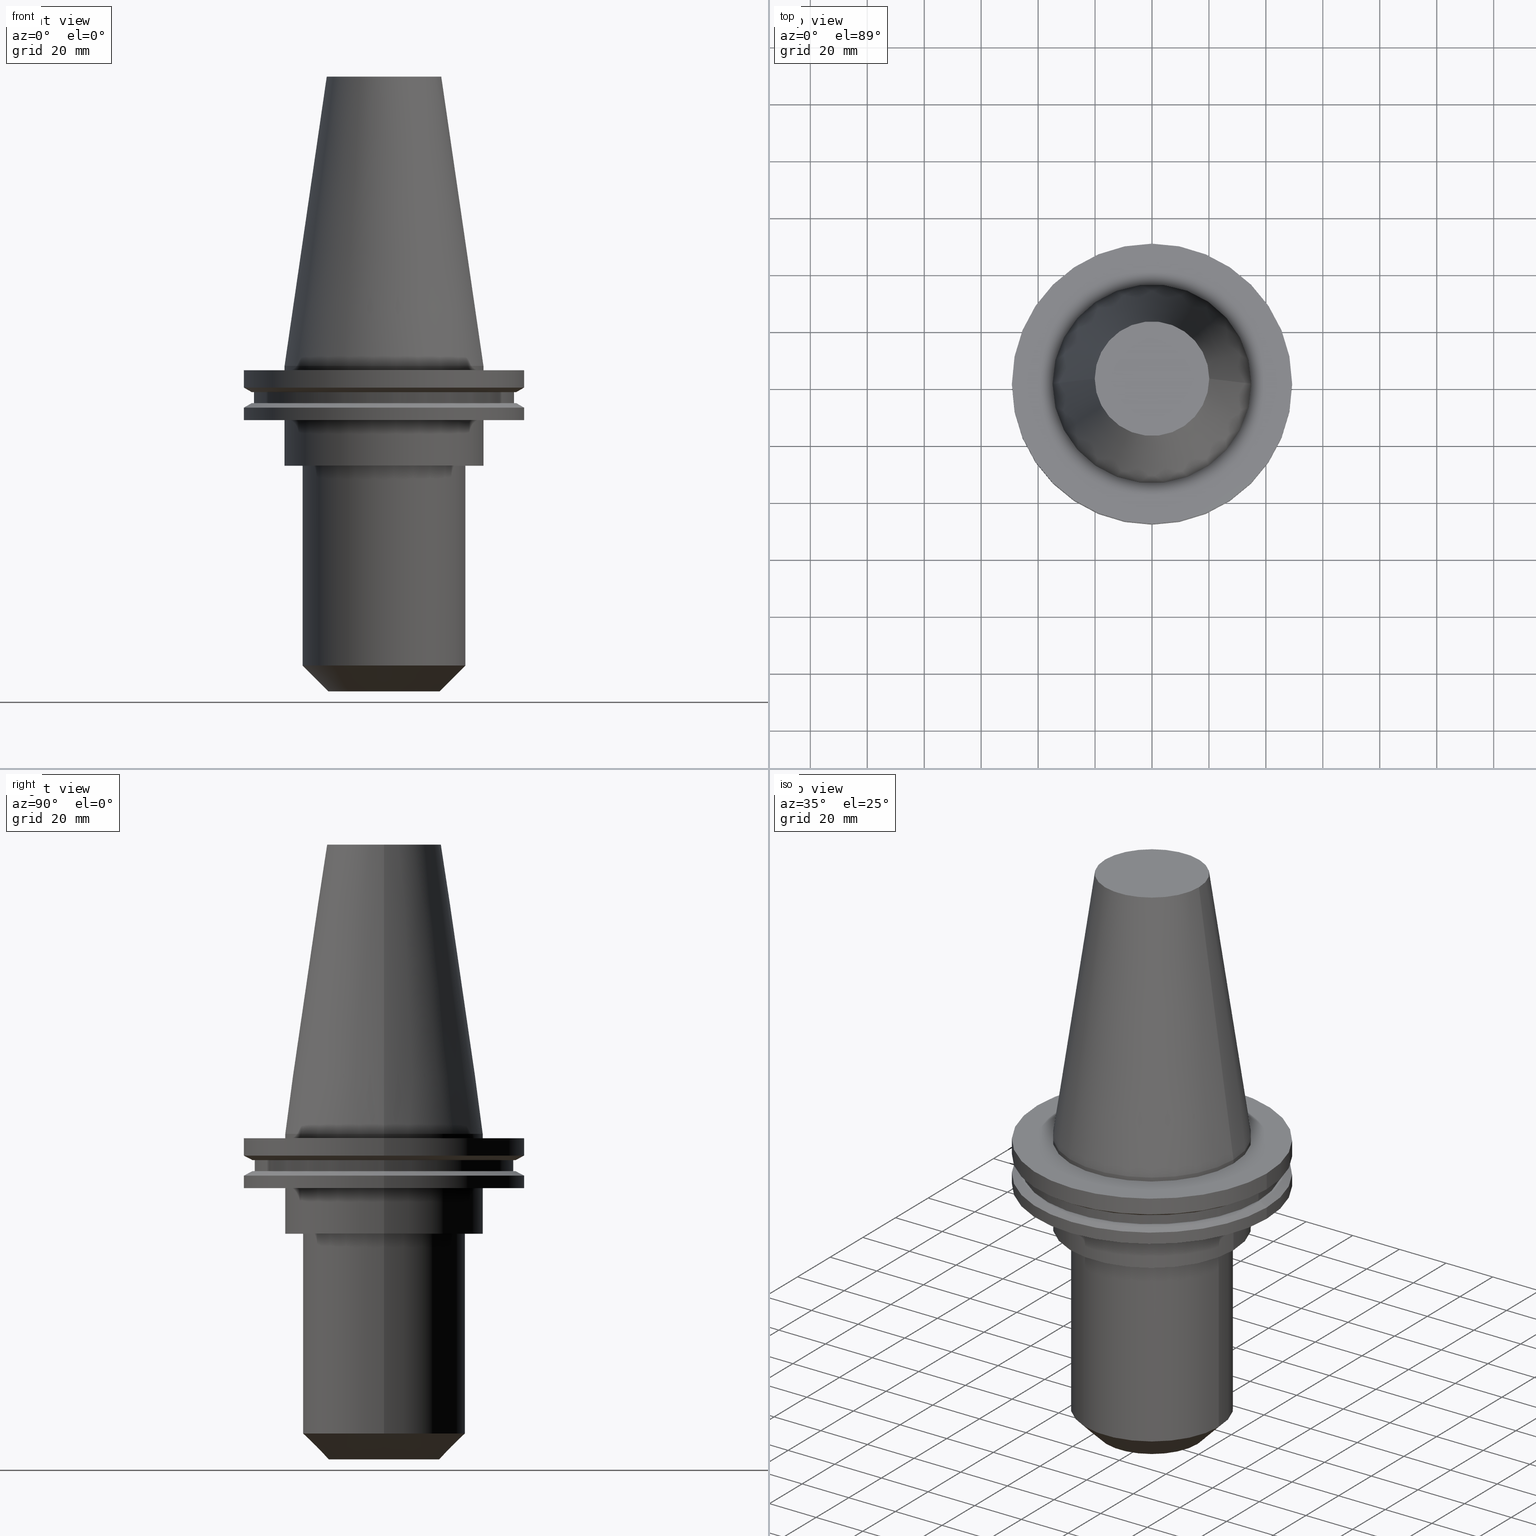
[diagram: canonical four-view strip — front | top / right | iso, engineering-drawing reading convention]
A machine part, canonical four-view strip (front | top / right | iso — engineering-drawing reading convention). The complete STEP part file that produces these views, byte-faithful:
ISO-10303-21;
HEADER;
FILE_DESCRIPTION (( 'STEP AP203' ),
    '1' );
FILE_NAME ('BCV50-EM1_000-4_5.stp',
    '2022-03-03T16:45:28',
    ( '' ),
    ( '' ),
    'SwSTEP 2.0',
    'SolidWorks 2021',
    '' );
FILE_SCHEMA (( 'CONFIG_CONTROL_DESIGN' ));
ENDSEC;

DATA;
#1 = DIRECTION ( 'NONE',  ( 1.000000000000000000, 0.000000000000000000, 0.000000000000000000 ) ) ;
#2 = CC_DESIGN_DATE_AND_TIME_ASSIGNMENT ( #43, #321, ( #687 ) ) ;
#3 = CARTESIAN_POINT ( 'NONE',  ( -49.21499999999998920, 0.000000000000000000, -14.65761014474876944 ) ) ;
#4 = CIRCLE ( 'NONE', #678, 49.21499999999999631 ) ;
#5 = CARTESIAN_POINT ( 'NONE',  ( 0.000000000000000000, 0.000000000000000000, -9.204999999999991189 ) ) ;
#6 = ORIENTED_EDGE ( 'NONE', *, *, #778, .F. ) ;
#7 = DIRECTION ( 'NONE',  ( 1.000000000000000000, 0.000000000000000000, 0.000000000000000000 ) ) ;
#8 = CIRCLE ( 'NONE', #429, 34.92499999999999005 ) ;
#9 = EDGE_CURVE ( 'NONE', #584, #83, #530, .T. ) ;
#10 = AXIS2_PLACEMENT_3D ( 'NONE', #202, #281, #85 ) ;
#11 = DIRECTION ( 'NONE',  ( -0.000000000000000000, -0.000000000000000000, 1.000000000000000000 ) ) ;
#12 = CC_DESIGN_PERSON_AND_ORGANIZATION_ASSIGNMENT ( #723, #245, ( #188 ) ) ;
#13 = PLANE ( 'NONE',  #763 ) ;
#14 = ORIENTED_EDGE ( 'NONE', *, *, #493, .F. ) ;
#15 = CARTESIAN_POINT ( 'NONE',  ( 0.000000000000000000, 0.000000000000000000, -9.204999999999991189 ) ) ;
#16 = CARTESIAN_POINT ( 'NONE',  ( -46.43919780457007818, 5.687161494633754392E-15, -9.204999999999991189 ) ) ;
#17 = ORIENTED_EDGE ( 'NONE', *, *, #525, .T. ) ;
#18 = DIRECTION ( 'NONE',  ( -0.000000000000000000, -0.000000000000000000, 1.000000000000000000 ) ) ;
#19 = CC_DESIGN_APPROVAL ( #711, ( #188 ) ) ;
#20 =( LENGTH_UNIT ( ) NAMED_UNIT ( * ) SI_UNIT ( .MILLI., .METRE. ) );
#21 = AXIS2_PLACEMENT_3D ( 'NONE', #310, #575, #581 ) ;
#22 = DIRECTION ( 'NONE',  ( 1.000000000000000000, 0.000000000000000000, 0.000000000000000000 ) ) ;
#23 = CYLINDRICAL_SURFACE ( 'NONE', #74, 34.92499999999999716 ) ;
#24 = EDGE_CURVE ( 'NONE', #488, #39, #159, .T. ) ;
#25 = LINE ( 'NONE', #374, #527 ) ;
#26 = VERTEX_POINT ( 'NONE', #338 ) ;
#27 = DIRECTION ( 'NONE',  ( 1.000000000000000000, 0.000000000000000000, 0.000000000000000000 ) ) ;
#28 = EDGE_CURVE ( 'NONE', #362, #294, #198, .T. ) ;
#29 = ORIENTED_EDGE ( 'NONE', *, *, #441, .T. ) ;
#30 = ORIENTED_EDGE ( 'NONE', *, *, #263, .T. ) ;
#31 = CARTESIAN_POINT ( 'NONE',  ( -45.64500000000000313, 5.589900314708094957E-15, -9.204999999999991189 ) ) ;
#32 = VECTOR ( 'NONE', #644, 1000.000000000000000 ) ;
#33 = APPLICATION_PROTOCOL_DEFINITION ( 'international standard', 'config_control_design', 1994, #190 ) ;
#34 = EDGE_LOOP ( 'NONE', ( #298, #235, #150, #29 ) ) ;
#35 = CARTESIAN_POINT ( 'NONE',  ( 0.000000000000000000, 0.000000000000000000, -14.65761014474876944 ) ) ;
#36 = VECTOR ( 'NONE', #489, 1000.000000000000000 ) ;
#37 = ORIENTED_EDGE ( 'NONE', *, *, #490, .F. ) ;
#38 = CARTESIAN_POINT ( 'NONE',  ( -46.43919780457007818, 0.000000000000000000, -13.05499999999999794 ) ) ;
#39 = VERTEX_POINT ( 'NONE', #259 ) ;
#40 = EDGE_LOOP ( 'NONE', ( #800, #836, #209, #240 ) ) ;
#41 = FACE_BOUND ( 'NONE', #454, .T. ) ;
#42 = ORIENTED_EDGE ( 'NONE', *, *, #512, .F. ) ;
#43 = DATE_AND_TIME ( #716, #401 ) ;
#44 = ORIENTED_EDGE ( 'NONE', *, *, #213, .F. ) ;
#45 = CARTESIAN_POINT ( 'NONE',  ( 0.000000000000000000, 0.000000000000000000, -114.2999999999999972 ) ) ;
#46 = PRODUCT_DEFINITION_SHAPE ( 'NONE', 'NONE',  #687 ) ;
#47 = AXIS2_PLACEMENT_3D ( 'NONE', #324, #720, #726 ) ;
#48 = DIRECTION ( 'NONE',  ( 1.000000000000000000, 0.000000000000000000, 0.000000000000000000 ) ) ;
#49 = ORIENTED_EDGE ( 'NONE', *, *, #254, .T. ) ;
#50 = DIRECTION ( 'NONE',  ( 0.000000000000000000, -0.000000000000000000, 1.000000000000000000 ) ) ;
#51 = APPLICATION_CONTEXT ( 'configuration controlled 3d designs of mechanical parts and assemblies' ) ;
#52 = CARTESIAN_POINT ( 'NONE',  ( 0.000000000000000000, 0.000000000000000000, 101.5999999999999943 ) ) ;
#53 = APPROVAL_STATUS ( 'not_yet_approved' ) ;
#54 = CARTESIAN_POINT ( 'NONE',  ( 0.000000000000000000, 49.21499999999998920, -19.04999999999999716 ) ) ;
#55 = CARTESIAN_POINT ( 'NONE',  ( -49.21499999999999631, 6.027099222003697826E-15, -1.499999999999987566 ) ) ;
#56 = AXIS2_PLACEMENT_3D ( 'NONE', #152, #306, #163 ) ;
#57 = DATE_AND_TIME ( #654, #510 ) ;
#58 = DIRECTION ( 'NONE',  ( -0.000000000000000000, -0.000000000000000000, 1.000000000000000000 ) ) ;
#59 = DIRECTION ( 'NONE',  ( 0.000000000000000000, 0.000000000000000000, -1.000000000000000000 ) ) ;
#60 = APPROVAL ( #578, 'UNSPECIFIED' ) ;
#61 = AXIS2_PLACEMENT_3D ( 'NONE', #231, #696, #27 ) ;
#62 = FACE_BOUND ( 'NONE', #682, .T. ) ;
#63 = FACE_BOUND ( 'NONE', #96, .T. ) ;
#64 = CARTESIAN_POINT ( 'NONE',  ( 0.000000000000000000, 0.000000000000000000, -9.204999999999991189 ) ) ;
#65 = DIRECTION ( 'NONE',  ( -0.000000000000000000, -0.000000000000000000, 1.000000000000000000 ) ) ;
#66 = ORIENTED_EDGE ( 'NONE', *, *, #504, .T. ) ;
#67 = CARTESIAN_POINT ( 'NONE',  ( 0.000000000000000000, 0.000000000000000000, -19.04999999999999716 ) ) ;
#68 = CIRCLE ( 'NONE', #258, 45.64500000000000313 ) ;
#69 = AXIS2_PLACEMENT_3D ( 'NONE', #35, #237, #556 ) ;
#70 = DIRECTION ( 'NONE',  ( -0.000000000000000000, -0.000000000000000000, 1.000000000000000000 ) ) ;
#71 = EDGE_LOOP ( 'NONE', ( #570, #404, #307, #555 ) ) ;
#72 = CARTESIAN_POINT ( 'NONE',  ( 0.000000000000000000, 0.000000000000000000, -9.204999999999991189 ) ) ;
#73 = LINE ( 'NONE', #544, #204 ) ;
#74 = AXIS2_PLACEMENT_3D ( 'NONE', #154, #354, #203 ) ;
#75 = CIRCLE ( 'NONE', #532, 28.59999999999999076 ) ;
#76 = DIRECTION ( 'NONE',  ( 1.000000000000000000, 0.000000000000000000, 0.000000000000000000 ) ) ;
#77 = EDGE_LOOP ( 'NONE', ( #635, #549 ) ) ;
#78 = EDGE_CURVE ( 'NONE', #542, #537, #464, .T. ) ;
#79 = FACE_OUTER_BOUND ( 'NONE', #366, .T. ) ;
#80 = DIRECTION ( 'NONE',  ( 1.000000000000000000, 0.000000000000000000, 0.000000000000000000 ) ) ;
#81 = ADVANCED_FACE ( 'NONE', ( #785 ), #754, .T. ) ;
#82 = DIRECTION ( 'NONE',  ( -0.1443082272672999988, 0.000000000000000000, -0.9895327864921755756 ) ) ;
#83 = VERTEX_POINT ( 'NONE', #267 ) ;
#84 = ADVANCED_FACE ( 'NONE', ( #461 ), #194, .T. ) ;
#85 = DIRECTION ( 'NONE',  ( 1.000000000000000000, 0.000000000000000000, 0.000000000000000000 ) ) ;
#86 = DIRECTION ( 'NONE',  ( -0.000000000000000000, -0.000000000000000000, 1.000000000000000000 ) ) ;
#87 = PERSON_AND_ORGANIZATION ( #796, #693 ) ;
#88 = AXIS2_PLACEMENT_3D ( 'NONE', #773, #131, #445 ) ;
#89 = ORIENTED_EDGE ( 'NONE', *, *, #142, .F. ) ;
#90 = DIRECTION ( 'NONE',  ( -0.000000000000000000, -0.000000000000000000, 1.000000000000000000 ) ) ;
#91 = ADVANCED_FACE ( 'NONE', ( #181 ), #320, .T. ) ;
#92 = COORDINATED_UNIVERSAL_TIME_OFFSET ( 6, 0, .BEHIND. ) ;
#93 = ORIENTED_EDGE ( 'NONE', *, *, #431, .T. ) ;
#94 = CARTESIAN_POINT ( 'NONE',  ( 45.64500000000000313, 0.000000000000000000, 101.5999999999999943 ) ) ;
#95 = DIRECTION ( 'NONE',  ( 0.000000000000000000, 0.000000000000000000, -1.000000000000000000 ) ) ;
#96 = EDGE_LOOP ( 'NONE', ( #183, #223 ) ) ;
#97 = CARTESIAN_POINT ( 'NONE',  ( 0.000000000000000000, 0.000000000000000000, -7.602389855251287187 ) ) ;
#98 = VERTEX_POINT ( 'NONE', #187 ) ;
#99 = CARTESIAN_POINT ( 'NONE',  ( -20.10819343178871321, 0.000000000000000000, 101.5999999999999801 ) ) ;
#100 = DIRECTION ( 'NONE',  ( -0.000000000000000000, -0.000000000000000000, 1.000000000000000000 ) ) ;
#101 = ORIENTED_EDGE ( 'NONE', *, *, #453, .F. ) ;
#102 = DIRECTION ( 'NONE',  ( 0.000000000000000000, 0.000000000000000000, -1.000000000000000000 ) ) ;
#103 = AXIS2_PLACEMENT_3D ( 'NONE', #751, #100, #370 ) ;
#104 = CC_DESIGN_PERSON_AND_ORGANIZATION_ASSIGNMENT ( #106, #826, ( #640 ) ) ;
#105 = DIRECTION ( 'NONE',  ( -0.000000000000000000, -0.000000000000000000, 1.000000000000000000 ) ) ;
#106 = PERSON_AND_ORGANIZATION ( #796, #693 ) ;
#107 = EDGE_LOOP ( 'NONE', ( #443, #551, #659, #469 ) ) ;
#108 = DIRECTION ( 'NONE',  ( -0.000000000000000000, -0.000000000000000000, 1.000000000000000000 ) ) ;
#109 = VECTOR ( 'NONE', #232, 1000.000000000000000 ) ;
#110 = VECTOR ( 'NONE', #436, 1000.000000000000000 ) ;
#111 = EDGE_LOOP ( 'NONE', ( #176, #313, #516, #827 ) ) ;
#112 = ADVANCED_FACE ( 'NONE', ( #590 ), #192, .T. ) ;
#113 = ORIENTED_EDGE ( 'NONE', *, *, #847, .T. ) ;
#114 = FACE_OUTER_BOUND ( 'NONE', #740, .T. ) ;
#115 = ORIENTED_EDGE ( 'NONE', *, *, #521, .T. ) ;
#116 = ADVANCED_FACE ( 'NONE', ( #540 ), #390, .F. ) ;
#117 = COORDINATED_UNIVERSAL_TIME_OFFSET ( 6, 0, .BEHIND. ) ;
#118 = EDGE_LOOP ( 'NONE', ( #226, #546 ) ) ;
#119 = DIRECTION ( 'NONE',  ( 0.000000000000000000, -0.000000000000000000, 1.000000000000000000 ) ) ;
#120 = AXIS2_PLACEMENT_3D ( 'NONE', #473, #70, #797 ) ;
#121 = CIRCLE ( 'NONE', #468, 49.21499999999999631 ) ;
#122 = ADVANCED_FACE ( 'NONE', ( #842 ), #329, .T. ) ;
#123 = DIRECTION ( 'NONE',  ( -0.8660254037844169472, 0.000000000000000000, -0.5000000000000375255 ) ) ;
#124 = ORIENTED_EDGE ( 'NONE', *, *, #490, .T. ) ;
#125 = DIRECTION ( 'NONE',  ( 1.000000000000000000, 0.000000000000000000, 0.000000000000000000 ) ) ;
#126 = AXIS2_PLACEMENT_3D ( 'NONE', #811, #639, #761 ) ;
#127 = DIRECTION ( 'NONE',  ( -1.000000000000000000, 0.000000000000000000, 0.000000000000000000 ) ) ;
#128 = DIRECTION ( 'NONE',  ( 1.000000000000000000, 0.000000000000000000, 0.000000000000000000 ) ) ;
#129 = DIRECTION ( 'NONE',  ( -0.000000000000000000, -0.000000000000000000, 1.000000000000000000 ) ) ;
#130 = COORDINATED_UNIVERSAL_TIME_OFFSET ( 6, 0, .BEHIND. ) ;
#131 = DIRECTION ( 'NONE',  ( 0.000000000000000000, 0.000000000000000000, -1.000000000000000000 ) ) ;
#132 = APPROVAL ( #759, 'UNSPECIFIED' ) ;
#133 = CARTESIAN_POINT ( 'NONE',  ( 0.000000000000000000, 0.000000000000000000, 101.5999999999999943 ) ) ;
#134 = CARTESIAN_POINT ( 'NONE',  ( 34.92499999999999716, 0.000000000000000000, -35.04999999999999716 ) ) ;
#135 = CARTESIAN_POINT ( 'NONE',  ( 0.000000000000000000, 0.000000000000000000, 101.5999999999999943 ) ) ;
#136 = CARTESIAN_POINT ( 'NONE',  ( 0.000000000000000000, 0.000000000000000000, -13.05499999999999794 ) ) ;
#137 = ORIENTED_EDGE ( 'NONE', *, *, #504, .F. ) ;
#138 = DIRECTION ( 'NONE',  ( 1.000000000000000000, 0.000000000000000000, 0.000000000000000000 ) ) ;
#139 = DIRECTION ( 'NONE',  ( 1.000000000000000000, 0.000000000000000000, 0.000000000000000000 ) ) ;
#140 = DIRECTION ( 'NONE',  ( -0.000000000000000000, -0.000000000000000000, 1.000000000000000000 ) ) ;
#141 = DIRECTION ( 'NONE',  ( -1.000000000000000000, 0.000000000000000000, -0.000000000000000000 ) ) ;
#142 = EDGE_CURVE ( 'NONE', #229, #425, #777, .T. ) ;
#143 = CARTESIAN_POINT ( 'NONE',  ( 0.000000000000000000, 0.000000000000000000, 101.5999999999999943 ) ) ;
#144 = ORIENTED_EDGE ( 'NONE', *, *, #437, .T. ) ;
#145 = CC_DESIGN_APPROVAL ( #132, ( #687 ) ) ;
#146 = DIRECTION ( 'NONE',  ( 0.000000000000000000, 0.000000000000000000, -1.000000000000000000 ) ) ;
#147 = DIRECTION ( 'NONE',  ( 1.000000000000000000, 0.000000000000000000, 0.000000000000000000 ) ) ;
#148 = VECTOR ( 'NONE', #816, 1000.000000000000000 ) ;
#149 = LINE ( 'NONE', #415, #729 ) ;
#150 = ORIENTED_EDGE ( 'NONE', *, *, #28, .T. ) ;
#151 = DIRECTION ( 'NONE',  ( -0.000000000000000000, -0.000000000000000000, 1.000000000000000000 ) ) ;
#152 = CARTESIAN_POINT ( 'NONE',  ( 0.000000000000000000, 0.000000000000000000, 0.000000000000000000 ) ) ;
#153 = VERTEX_POINT ( 'NONE', #55 ) ;
#154 = CARTESIAN_POINT ( 'NONE',  ( 0.000000000000000000, 0.000000000000000000, 101.5999999999999943 ) ) ;
#155 = DIRECTION ( 'NONE',  ( -0.000000000000000000, -0.000000000000000000, 1.000000000000000000 ) ) ;
#156 = AXIS2_PLACEMENT_3D ( 'NONE', #517, #257, #776 ) ;
#157 = ORIENTED_EDGE ( 'NONE', *, *, #812, .F. ) ;
#158 = DIRECTION ( 'NONE',  ( -0.000000000000000000, -0.000000000000000000, 1.000000000000000000 ) ) ;
#159 = CIRCLE ( 'NONE', #47, 28.59999999999999432 ) ;
#160 = DIRECTION ( 'NONE',  ( -0.000000000000000000, -0.000000000000000000, 1.000000000000000000 ) ) ;
#161 = ORIENTED_EDGE ( 'NONE', *, *, #420, .T. ) ;
#162 = DIRECTION ( 'NONE',  ( 1.000000000000000000, 0.000000000000000000, 0.000000000000000000 ) ) ;
#163 = DIRECTION ( 'NONE',  ( 1.000000000000000000, 0.000000000000000000, 0.000000000000000000 ) ) ;
#164 = VERTEX_POINT ( 'NONE', #596 ) ;
#165 = ADVANCED_FACE ( 'NONE', ( #292 ), #23, .T. ) ;
#166 = CARTESIAN_POINT ( 'NONE',  ( 49.21499999999999631, 0.000000000000000000, 101.5999999999999943 ) ) ;
#167 = DIRECTION ( 'NONE',  ( 1.000000000000000000, 0.000000000000000000, 0.000000000000000000 ) ) ;
#168 = ADVANCED_FACE ( 'NONE', ( #679 ), #343, .T. ) ;
#169 = VERTEX_POINT ( 'NONE', #475 ) ;
#170 = DIRECTION ( 'NONE',  ( 1.000000000000000000, 0.000000000000000000, 0.000000000000000000 ) ) ;
#171 = AXIS2_PLACEMENT_3D ( 'NONE', #179, #448, #618 ) ;
#172 = ORIENTED_EDGE ( 'NONE', *, *, #791, .T. ) ;
#173 = CARTESIAN_POINT ( 'NONE',  ( 34.92499999999999716, 0.000000000000000000, 101.5999999999999943 ) ) ;
#174 = AXIS2_PLACEMENT_3D ( 'NONE', #647, #377, #386 ) ;
#175 = DIRECTION ( 'NONE',  ( -1.000000000000000000, 0.000000000000000000, -0.000000000000000000 ) ) ;
#176 = ORIENTED_EDGE ( 'NONE', *, *, #608, .F. ) ;
#177 = APPROVAL_DATE_TIME ( #57, #60 ) ;
#178 = ORIENTED_EDGE ( 'NONE', *, *, #24, .F. ) ;
#179 = CARTESIAN_POINT ( 'NONE',  ( 0.000000000000000000, 12.69999999999999396, -114.2999999999999972 ) ) ;
#180 = EDGE_CURVE ( 'NONE', #169, #488, #73, .T. ) ;
#181 = FACE_OUTER_BOUND ( 'NONE', #406, .T. ) ;
#182 = DATE_TIME_ROLE ( 'classification_date' ) ;
#183 = ORIENTED_EDGE ( 'NONE', *, *, #420, .F. ) ;
#184 = DIRECTION ( 'NONE',  ( -0.000000000000000000, -0.000000000000000000, 1.000000000000000000 ) ) ;
#185 = EDGE_CURVE ( 'NONE', #537, #26, #805, .T. ) ;
#186 = AXIS2_PLACEMENT_3D ( 'NONE', #351, #601, #1 ) ;
#187 = CARTESIAN_POINT ( 'NONE',  ( 34.92499999999999716, 0.000000000000000000, -19.04999999999999716 ) ) ;
#188 = PRODUCT_DEFINITION_FORMATION_WITH_SPECIFIED_SOURCE ( 'ANY', '', #640, .NOT_KNOWN. ) ;
#189 = ORIENTED_EDGE ( 'NONE', *, *, #361, .F. ) ;
#190 = APPLICATION_CONTEXT ( 'configuration controlled 3d designs of mechanical parts and assemblies' ) ;
#191 = LINE ( 'NONE', #323, #692 ) ;
#192 = CYLINDRICAL_SURFACE ( 'NONE', #586, 34.92499999999999005 ) ;
#193 = DIRECTION ( 'NONE',  ( 1.000000000000000000, 0.000000000000000000, 0.000000000000000000 ) ) ;
#194 = CYLINDRICAL_SURFACE ( 'NONE', #669, 34.92499999999999716 ) ;
#195 = EDGE_CURVE ( 'NONE', #488, #164, #364, .T. ) ;
#196 = LINE ( 'NONE', #279, #562 ) ;
#197 = EDGE_CURVE ( 'NONE', #373, #814, #8, .T. ) ;
#198 = LINE ( 'NONE', #3, #553 ) ;
#199 = AXIS2_PLACEMENT_3D ( 'NONE', #136, #408, #675 ) ;
#200 = VECTOR ( 'NONE', #385, 1000.000000000000000 ) ;
#201 = DIRECTION ( 'NONE',  ( -0.000000000000000000, -0.000000000000000000, 1.000000000000000000 ) ) ;
#202 = CARTESIAN_POINT ( 'NONE',  ( 0.000000000000000000, 0.000000000000000000, -114.2999999999999972 ) ) ;
#203 = DIRECTION ( 'NONE',  ( 1.000000000000000000, 0.000000000000000000, 0.000000000000000000 ) ) ;
#204 = VECTOR ( 'NONE', #419, 1000.000000000000000 ) ;
#205 = DIRECTION ( 'NONE',  ( 1.000000000000000000, 0.000000000000000000, 0.000000000000000000 ) ) ;
#206 = ORIENTED_EDGE ( 'NONE', *, *, #417, .F. ) ;
#207 = EDGE_CURVE ( 'NONE', #745, #387, #288, .T. ) ;
#208 = CARTESIAN_POINT ( 'NONE',  ( 0.000000000000000000, 0.000000000000000000, -19.04999999999999716 ) ) ;
#209 = ORIENTED_EDGE ( 'NONE', *, *, #185, .T. ) ;
#210 = DIRECTION ( 'NONE',  ( 1.000000000000000000, 0.000000000000000000, 0.000000000000000000 ) ) ;
#211 = LINE ( 'NONE', #739, #691 ) ;
#212 = ORIENTED_EDGE ( 'NONE', *, *, #9, .T. ) ;
#213 = EDGE_CURVE ( 'NONE', #638, #412, #824, .T. ) ;
#214 = AXIS2_PLACEMENT_3D ( 'NONE', #312, #303, #823 ) ;
#215 = APPROVAL_DATE_TIME ( #803, #132 ) ;
#216 = PRODUCT_RELATED_PRODUCT_CATEGORY ( 'detail', '', ( #640 ) ) ;
#217 = CARTESIAN_POINT ( 'NONE',  ( 49.21499999999998920, 6.027099222003697037E-15, -14.65761014474876944 ) ) ;
#218 = CARTESIAN_POINT ( 'NONE',  ( 0.000000000000000000, 0.000000000000000000, 101.5999999999999801 ) ) ;
#219 = FACE_OUTER_BOUND ( 'NONE', #579, .T. ) ;
#220 = PLANE ( 'NONE',  #514 ) ;
#221 = CARTESIAN_POINT ( 'NONE',  ( 0.000000000000000000, 0.000000000000000000, -13.05499999999999794 ) ) ;
#222 = VECTOR ( 'NONE', #538, 1000.000000000000000 ) ;
#223 = ORIENTED_EDGE ( 'NONE', *, *, #437, .F. ) ;
#224 = CIRCLE ( 'NONE', #564, 12.69999999999999396 ) ;
#225 = DIRECTION ( 'NONE',  ( 1.000000000000000000, 0.000000000000000000, 0.000000000000000000 ) ) ;
#226 = ORIENTED_EDGE ( 'NONE', *, *, #757, .F. ) ;
#227 = EDGE_CURVE ( 'NONE', #591, #685, #457, .T. ) ;
#228 =( NAMED_UNIT ( * ) PLANE_ANGLE_UNIT ( ) SI_UNIT ( $, .RADIAN. ) );
#229 = VERTEX_POINT ( 'NONE', #554 ) ;
#230 = CIRCLE ( 'NONE', #61, 49.21499999999998920 ) ;
#231 = CARTESIAN_POINT ( 'NONE',  ( 0.000000000000000000, 0.000000000000000000, -19.04999999999999716 ) ) ;
#232 = DIRECTION ( 'NONE',  ( -0.000000000000000000, -0.000000000000000000, 1.000000000000000000 ) ) ;
#233 = ORIENTED_EDGE ( 'NONE', *, *, #424, .T. ) ;
#234 = PERSON_AND_ORGANIZATION ( #796, #693 ) ;
#235 = ORIENTED_EDGE ( 'NONE', *, *, #274, .F. ) ;
#236 = EDGE_CURVE ( 'NONE', #764, #501, #808, .T. ) ;
#237 = DIRECTION ( 'NONE',  ( -0.000000000000000000, -0.000000000000000000, 1.000000000000000000 ) ) ;
#238 = ORIENTED_EDGE ( 'NONE', *, *, #424, .F. ) ;
#239 = PERSON_AND_ORGANIZATION_ROLE ( 'design_supplier' ) ;
#240 = ORIENTED_EDGE ( 'NONE', *, *, #525, .F. ) ;
#241 = AXIS2_PLACEMENT_3D ( 'NONE', #548, #11, #265 ) ;
#242 = CYLINDRICAL_SURFACE ( 'NONE', #269, 49.21499999999998920 ) ;
#243 = AXIS2_PLACEMENT_3D ( 'NONE', #844, #50, #656 ) ;
#244 = CARTESIAN_POINT ( 'NONE',  ( 0.000000000000000000, 49.21499999999999631, -1.499999999999992895 ) ) ;
#245 = PERSON_AND_ORGANIZATION_ROLE ( 'creator' ) ;
#246 = EDGE_LOOP ( 'NONE', ( #709, #676, #30, #712 ) ) ;
#247 = DIRECTION ( 'NONE',  ( 1.000000000000000000, 0.000000000000000000, 0.000000000000000000 ) ) ;
#248 = CONICAL_SURFACE ( 'NONE', #276, 34.92499999999999005, 0.1448138465474119452 ) ;
#249 = CC_DESIGN_PERSON_AND_ORGANIZATION_ASSIGNMENT ( #325, #239, ( #188 ) ) ;
#250 = SHAPE_DEFINITION_REPRESENTATION ( #46, #446 ) ;
#251 = EDGE_LOOP ( 'NONE', ( #66, #124 ) ) ;
#252 = CARTESIAN_POINT ( 'NONE',  ( 12.69999999999999218, 0.000000000000000000, 0.000000000000000000 ) ) ;
#253 = CARTESIAN_POINT ( 'NONE',  ( 0.000000000000000000, 0.000000000000000000, 101.5999999999999943 ) ) ;
#254 = EDGE_CURVE ( 'NONE', #39, #706, #746, .T. ) ;
#255 = CALENDAR_DATE ( 2022, 3, 3 ) ;
#256 = ORIENTED_EDGE ( 'NONE', *, *, #332, .T. ) ;
#257 = DIRECTION ( 'NONE',  ( -0.000000000000000000, -0.000000000000000000, 1.000000000000000000 ) ) ;
#258 = AXIS2_PLACEMENT_3D ( 'NONE', #5, #735, #285 ) ;
#259 = CARTESIAN_POINT ( 'NONE',  ( -28.59999999999999787, 3.502489845561429418E-15, -105.2000000000000028 ) ) ;
#260 = DIRECTION ( 'NONE',  ( -0.000000000000000000, -0.000000000000000000, 1.000000000000000000 ) ) ;
#261 = AXIS2_PLACEMENT_3D ( 'NONE', #253, #524, #851 ) ;
#262 = CARTESIAN_POINT ( 'NONE',  ( -12.69999999999999218, 1.555301434917137841E-15, -35.04999999999999716 ) ) ;
#263 = EDGE_CURVE ( 'NONE', #425, #810, #333, .T. ) ;
#264 = ORIENTED_EDGE ( 'NONE', *, *, #348, .F. ) ;
#265 = DIRECTION ( 'NONE',  ( 1.000000000000000000, 0.000000000000000000, 0.000000000000000000 ) ) ;
#266 = CYLINDRICAL_SURFACE ( 'NONE', #612, 34.92499999999999005 ) ;
#267 = CARTESIAN_POINT ( 'NONE',  ( 46.43919780457007818, 0.000000000000000000, -9.204999999999991189 ) ) ;
#268 = AXIS2_PLACEMENT_3D ( 'NONE', #340, #604, #636 ) ;
#269 = AXIS2_PLACEMENT_3D ( 'NONE', #646, #90, #22 ) ;
#270 = DESIGN_CONTEXT ( 'detailed design', #51, 'design' ) ;
#271 = APPROVAL_PERSON_ORGANIZATION ( #839, #711, #771 ) ;
#272 = DIRECTION ( 'NONE',  ( 1.000000000000000000, 0.000000000000000000, 0.000000000000000000 ) ) ;
#273 = EDGE_LOOP ( 'NONE', ( #301, #391, #648, #161 ) ) ;
#274 = EDGE_CURVE ( 'NONE', #362, #764, #442, .T. ) ;
#275 = AXIS2_PLACEMENT_3D ( 'NONE', #67, #413, #80 ) ;
#276 = AXIS2_PLACEMENT_3D ( 'NONE', #749, #95, #368 ) ;
#277 = FACE_OUTER_BOUND ( 'NONE', #382, .T. ) ;
#278 = EDGE_LOOP ( 'NONE', ( #286, #113, #451, #600 ) ) ;
#279 = CARTESIAN_POINT ( 'NONE',  ( -45.64500000000000313, 5.589900314708094957E-15, 101.5999999999999943 ) ) ;
#280 = ORIENTED_EDGE ( 'NONE', *, *, #417, .T. ) ;
#281 = DIRECTION ( 'NONE',  ( -0.000000000000000000, -0.000000000000000000, 1.000000000000000000 ) ) ;
#282 = DIRECTION ( 'NONE',  ( -0.000000000000000000, -0.000000000000000000, 1.000000000000000000 ) ) ;
#283 = AXIS2_PLACEMENT_3D ( 'NONE', #143, #670, #205 ) ;
#284 = CC_DESIGN_PERSON_AND_ORGANIZATION_ASSIGNMENT ( #87, #421, ( #687 ) ) ;
#285 = DIRECTION ( 'NONE',  ( 1.000000000000000000, 0.000000000000000000, 0.000000000000000000 ) ) ;
#286 = ORIENTED_EDGE ( 'NONE', *, *, #757, .T. ) ;
#287 = DIRECTION ( 'NONE',  ( 1.000000000000000000, 0.000000000000000000, 0.000000000000000000 ) ) ;
#288 = CIRCLE ( 'NONE', #275, 49.21499999999998920 ) ;
#289 = ORIENTED_EDGE ( 'NONE', *, *, #185, .F. ) ;
#290 = LINE ( 'NONE', #707, #789 ) ;
#291 = EDGE_CURVE ( 'NONE', #501, #294, #403, .T. ) ;
#292 = FACE_OUTER_BOUND ( 'NONE', #107, .T. ) ;
#293 = APPROVAL_ROLE ( '' ) ;
#294 = VERTEX_POINT ( 'NONE', #829 ) ;
#295 = CARTESIAN_POINT ( 'NONE',  ( 0.000000000000000000, 0.000000000000000000, -114.2999999999999972 ) ) ;
#296 = ADVANCED_FACE ( 'NONE', ( #762, #834 ), #220, .F. ) ;
#297 = FACE_OUTER_BOUND ( 'NONE', #77, .T. ) ;
#298 = ORIENTED_EDGE ( 'NONE', *, *, #236, .F. ) ;
#299 = DIRECTION ( 'NONE',  ( -0.000000000000000000, -0.000000000000000000, 1.000000000000000000 ) ) ;
#300 = AXIS2_PLACEMENT_3D ( 'NONE', #218, #299, #494 ) ;
#301 = ORIENTED_EDGE ( 'NONE', *, *, #254, .F. ) ;
#302 = ADVANCED_FACE ( 'NONE', ( #558 ), #248, .T. ) ;
#303 = DIRECTION ( 'NONE',  ( -0.000000000000000000, -0.000000000000000000, 1.000000000000000000 ) ) ;
#304 = SECURITY_CLASSIFICATION ( '', '', #594 ) ;
#305 = ADVANCED_FACE ( 'NONE', ( #630, #297 ), #536, .F. ) ;
#306 = DIRECTION ( 'NONE',  ( 0.000000000000000000, 0.000000000000000000, 1.000000000000000000 ) ) ;
#307 = ORIENTED_EDGE ( 'NONE', *, *, #291, .T. ) ;
#308 = CIRCLE ( 'NONE', #459, 45.64500000000000313 ) ;
#309 = LINE ( 'NONE', #94, #148 ) ;
#310 = CARTESIAN_POINT ( 'NONE',  ( 0.000000000000000000, 0.000000000000000000, -14.65761014474876944 ) ) ;
#311 = ORIENTED_EDGE ( 'NONE', *, *, #832, .T. ) ;
#312 = CARTESIAN_POINT ( 'NONE',  ( 0.000000000000000000, 0.000000000000000000, -35.04999999999999716 ) ) ;
#313 = ORIENTED_EDGE ( 'NONE', *, *, #339, .T. ) ;
#314 = ADVANCED_FACE ( 'NONE', ( #79 ), #266, .T. ) ;
#315 = VECTOR ( 'NONE', #623, 1000.000000000000000 ) ;
#316 = CARTESIAN_POINT ( 'NONE',  ( 0.000000000000000000, 0.000000000000000000, 0.000000000000000000 ) ) ;
#317 = PERSON_AND_ORGANIZATION_ROLE ( 'classification_officer' ) ;
#318 = EDGE_LOOP ( 'NONE', ( #734, #456, #587, #6 ) ) ;
#319 = FACE_OUTER_BOUND ( 'NONE', #605, .T. ) ;
#320 = CYLINDRICAL_SURFACE ( 'NONE', #658, 49.21499999999999631 ) ;
#321 = DATE_TIME_ROLE ( 'creation_date' ) ;
#322 = VERTEX_POINT ( 'NONE', #418 ) ;
#323 = CARTESIAN_POINT ( 'NONE',  ( 34.92499999999999005, 0.000000000000000000, 101.5999999999999943 ) ) ;
#324 = CARTESIAN_POINT ( 'NONE',  ( 0.000000000000000000, 0.000000000000000000, -105.2000000000000028 ) ) ;
#325 = PERSON_AND_ORGANIZATION ( #796, #693 ) ;
#326 = CARTESIAN_POINT ( 'NONE',  ( -49.21499999999999631, 6.027099222003697826E-15, 101.5999999999999943 ) ) ;
#327 = CARTESIAN_POINT ( 'NONE',  ( 0.000000000000000000, 45.64500000000000313, -13.05499999999999794 ) ) ;
#328 = AXIS2_PLACEMENT_3D ( 'NONE', #221, #378, #167 ) ;
#329 = CYLINDRICAL_SURFACE ( 'NONE', #261, 45.64500000000000313 ) ;
#330 = ADVANCED_FACE ( 'NONE', ( #795 ), #683, .T. ) ;
#331 = CYLINDRICAL_SURFACE ( 'NONE', #492, 12.69999999999999218 ) ;
#332 = EDGE_CURVE ( 'NONE', #542, #610, #571, .T. ) ;
#333 = CIRCLE ( 'NONE', #769, 34.92499999999999005 ) ;
#334 = CIRCLE ( 'NONE', #126, 28.59999999999999076 ) ;
#335 = ORIENTED_EDGE ( 'NONE', *, *, #361, .T. ) ;
#336 = DIRECTION ( 'NONE',  ( -0.000000000000000000, -0.000000000000000000, 1.000000000000000000 ) ) ;
#337 = PLANE ( 'NONE',  #722 ) ;
#338 = CARTESIAN_POINT ( 'NONE',  ( 12.69999999999999218, 0.000000000000000000, -35.04999999999999716 ) ) ;
#339 = EDGE_CURVE ( 'NONE', #447, #485, #308, .T. ) ;
#340 = CARTESIAN_POINT ( 'NONE',  ( 0.000000000000000000, 0.000000000000000000, -35.04999999999999716 ) ) ;
#341 = ADVANCED_FACE ( 'NONE', ( #552, #63 ), #337, .F. ) ;
#342 = ORIENTED_EDGE ( 'NONE', *, *, #227, .T. ) ;
#343 = CYLINDRICAL_SURFACE ( 'NONE', #708, 28.59999999999999076 ) ;
#344 = CIRCLE ( 'NONE', #328, 46.43919780457007818 ) ;
#345 = LOCAL_TIME ( 10, 45, 28.00000000000000000, #92 ) ;
#346 = CARTESIAN_POINT ( 'NONE',  ( -28.59999999999999076, 3.502489845561428629E-15, -35.04999999999999716 ) ) ;
#347 = ORIENTED_EDGE ( 'NONE', *, *, #812, .T. ) ;
#348 = EDGE_CURVE ( 'NONE', #169, #770, #599, .T. ) ;
#349 = AXIS2_PLACEMENT_3D ( 'NONE', #15, #282, #359 ) ;
#350 = AXIS2_PLACEMENT_3D ( 'NONE', #367, #828, #162 ) ;
#351 = CARTESIAN_POINT ( 'NONE',  ( 0.000000000000000000, 0.000000000000000000, -35.04999999999999716 ) ) ;
#352 = EDGE_LOOP ( 'NONE', ( #736, #628, #44, #508 ) ) ;
#353 = DIRECTION ( 'NONE',  ( -0.000000000000000000, -0.000000000000000000, 1.000000000000000000 ) ) ;
#354 = DIRECTION ( 'NONE',  ( -0.000000000000000000, -0.000000000000000000, 1.000000000000000000 ) ) ;
#355 = MANIFOLD_SOLID_BREP ( 'EM', #543 ) ;
#356 = LINE ( 'NONE', #16, #222 ) ;
#357 = ORIENTED_EDGE ( 'NONE', *, *, #846, .F. ) ;
#358 = DIRECTION ( 'NONE',  ( 1.000000000000000000, 0.000000000000000000, 0.000000000000000000 ) ) ;
#359 = DIRECTION ( 'NONE',  ( 1.000000000000000000, 0.000000000000000000, 0.000000000000000000 ) ) ;
#360 = CIRCLE ( 'NONE', #268, 34.92499999999999716 ) ;
#361 = EDGE_CURVE ( 'NONE', #810, #425, #497, .T. ) ;
#362 = VERTEX_POINT ( 'NONE', #38 ) ;
#363 = FACE_OUTER_BOUND ( 'NONE', #318, .T. ) ;
#364 = LINE ( 'NONE', #477, #569 ) ;
#365 = CARTESIAN_POINT ( 'NONE',  ( -34.92499999999999005, 0.000000000000000000, 0.000000000000000000 ) ) ;
#366 = EDGE_LOOP ( 'NONE', ( #724, #563, #449, #189 ) ) ;
#367 = CARTESIAN_POINT ( 'NONE',  ( 0.000000000000000000, 0.000000000000000000, -1.499999999999987566 ) ) ;
#368 = DIRECTION ( 'NONE',  ( -1.000000000000000000, 0.000000000000000000, 0.000000000000000000 ) ) ;
#369 = EDGE_CURVE ( 'NONE', #650, #98, #633, .T. ) ;
#370 = DIRECTION ( 'NONE',  ( 1.000000000000000000, 0.000000000000000000, 0.000000000000000000 ) ) ;
#371 = EDGE_CURVE ( 'NONE', #485, #638, #309, .T. ) ;
#372 = ORIENTED_EDGE ( 'NONE', *, *, #701, .T. ) ;
#373 = VERTEX_POINT ( 'NONE', #432 ) ;
#374 = CARTESIAN_POINT ( 'NONE',  ( -34.92499999999999716, 4.277078946022130887E-15, 101.5999999999999943 ) ) ;
#375 = ORIENTED_EDGE ( 'NONE', *, *, #450, .F. ) ;
#376 = DIRECTION ( 'NONE',  ( -1.000000000000000000, 0.000000000000000000, 0.000000000000000000 ) ) ;
#377 = DIRECTION ( 'NONE',  ( -0.000000000000000000, -0.000000000000000000, 1.000000000000000000 ) ) ;
#378 = DIRECTION ( 'NONE',  ( -0.000000000000000000, -0.000000000000000000, 1.000000000000000000 ) ) ;
#379 = VERTEX_POINT ( 'NONE', #99 ) ;
#380 = CONICAL_SURFACE ( 'NONE', #853, 19.49999999999998224, 0.7853981633974490562 ) ;
#381 = FACE_OUTER_BOUND ( 'NONE', #756, .T. ) ;
#382 = EDGE_LOOP ( 'NONE', ( #357, #766, #702, #645 ) ) ;
#383 = EDGE_CURVE ( 'NONE', #814, #373, #743, .T. ) ;
#384 = EDGE_LOOP ( 'NONE', ( #779, #689, #533, #42 ) ) ;
#385 = DIRECTION ( 'NONE',  ( -0.000000000000000000, -0.000000000000000000, 1.000000000000000000 ) ) ;
#386 = DIRECTION ( 'NONE',  ( 1.000000000000000000, 0.000000000000000000, 0.000000000000000000 ) ) ;
#387 = VERTEX_POINT ( 'NONE', #699 ) ;
#388 = CARTESIAN_POINT ( 'NONE',  ( 49.21500000000000341, 0.000000000000000000, -7.602389855251287187 ) ) ;
#389 = AXIS2_PLACEMENT_3D ( 'NONE', #748, #158, #426 ) ;
#390 = PLANE ( 'NONE',  #641 ) ;
#391 = ORIENTED_EDGE ( 'NONE', *, *, #428, .T. ) ;
#392 = AXIS2_PLACEMENT_3D ( 'NONE', #64, #593, #395 ) ;
#393 = CARTESIAN_POINT ( 'NONE',  ( 0.000000000000000000, 0.000000000000000000, 0.000000000000000000 ) ) ;
#394 = CIRCLE ( 'NONE', #69, 49.21499999999998920 ) ;
#395 = DIRECTION ( 'NONE',  ( 1.000000000000000000, 0.000000000000000000, 0.000000000000000000 ) ) ;
#396 = CARTESIAN_POINT ( 'NONE',  ( -12.69999999999999574, 1.555301434917138038E-15, -114.2999999999999972 ) ) ;
#397 = DIRECTION ( 'NONE',  ( -0.000000000000000000, -0.000000000000000000, 1.000000000000000000 ) ) ;
#398 = FACE_OUTER_BOUND ( 'NONE', #40, .T. ) ;
#399 = VECTOR ( 'NONE', #458, 1000.000000000000000 ) ;
#400 = CARTESIAN_POINT ( 'NONE',  ( 0.000000000000000000, 20.10819343178871321, 101.5999999999999943 ) ) ;
#401 = LOCAL_TIME ( 10, 45, 28.00000000000000000, #688 ) ;
#402 = FACE_OUTER_BOUND ( 'NONE', #655, .T. ) ;
#403 = CIRCLE ( 'NONE', #21, 49.21499999999998920 ) ;
#404 = ORIENTED_EDGE ( 'NONE', *, *, #236, .T. ) ;
#405 = FACE_OUTER_BOUND ( 'NONE', #352, .T. ) ;
#406 = EDGE_LOOP ( 'NONE', ( #14, #347, #93, #37 ) ) ;
#407 = DIRECTION ( 'NONE',  ( -0.000000000000000000, -0.000000000000000000, 1.000000000000000000 ) ) ;
#408 = DIRECTION ( 'NONE',  ( -0.000000000000000000, -0.000000000000000000, 1.000000000000000000 ) ) ;
#409 = ORIENTED_EDGE ( 'NONE', *, *, #9, .F. ) ;
#410 = AXIS2_PLACEMENT_3D ( 'NONE', #733, #201, #272 ) ;
#411 = FACE_OUTER_BOUND ( 'NONE', #787, .T. ) ;
#412 = VERTEX_POINT ( 'NONE', #31 ) ;
#413 = DIRECTION ( 'NONE',  ( -0.000000000000000000, -0.000000000000000000, 1.000000000000000000 ) ) ;
#414 = AXIS2_PLACEMENT_3D ( 'NONE', #72, #617, #138 ) ;
#415 = CARTESIAN_POINT ( 'NONE',  ( -34.92499999999999005, 0.000000000000000000, 0.000000000000000000 ) ) ;
#416 = ORIENTED_EDGE ( 'NONE', *, *, #791, .F. ) ;
#417 = EDGE_CURVE ( 'NONE', #26, #537, #755, .T. ) ;
#418 = CARTESIAN_POINT ( 'NONE',  ( -34.92499999999999716, 4.277078946022130887E-15, -35.04999999999999716 ) ) ;
#419 = DIRECTION ( 'NONE',  ( 0.7071067811865481278, 0.000000000000000000, 0.7071067811865470176 ) ) ;
#420 = EDGE_CURVE ( 'NONE', #164, #706, #75, .T. ) ;
#421 = PERSON_AND_ORGANIZATION_ROLE ( 'creator' ) ;
#422 = ORIENTED_EDGE ( 'NONE', *, *, #523, .F. ) ;
#423 = CONICAL_SURFACE ( 'NONE', #88, 49.21499999999998920, 1.047197551196554333 ) ;
#424 = EDGE_CURVE ( 'NONE', #387, #745, #230, .T. ) ;
#425 = VERTEX_POINT ( 'NONE', #629 ) ;
#426 = DIRECTION ( 'NONE',  ( 1.000000000000000000, 0.000000000000000000, 0.000000000000000000 ) ) ;
#427 = ADVANCED_FACE ( 'NONE', ( #381 ), #380, .T. ) ;
#428 = EDGE_CURVE ( 'NONE', #39, #488, #642, .T. ) ;
#429 = AXIS2_PLACEMENT_3D ( 'NONE', #627, #86, #147 ) ;
#430 = ORIENTED_EDGE ( 'NONE', *, *, #441, .F. ) ;
#431 = EDGE_CURVE ( 'NONE', #591, #526, #753, .T. ) ;
#432 = CARTESIAN_POINT ( 'NONE',  ( 34.92499999999999005, 0.000000000000000000, -1.499999999999987566 ) ) ;
#433 = ADVANCED_FACE ( 'NONE', ( #767 ), #806, .T. ) ;
#434 = CARTESIAN_POINT ( 'NONE',  ( -34.92499999999999005, 4.277078946022130098E-15, 101.5999999999999943 ) ) ;
#435 = ORIENTED_EDGE ( 'NONE', *, *, #521, .F. ) ;
#436 = DIRECTION ( 'NONE',  ( -0.000000000000000000, -0.000000000000000000, 1.000000000000000000 ) ) ;
#437 = EDGE_CURVE ( 'NONE', #706, #164, #334, .T. ) ;
#438 = CALENDAR_DATE ( 2022, 3, 3 ) ;
#439 = ORIENTED_EDGE ( 'NONE', *, *, #24, .T. ) ;
#440 = DIRECTION ( 'NONE',  ( 1.000000000000000000, 0.000000000000000000, 0.000000000000000000 ) ) ;
#441 = EDGE_CURVE ( 'NONE', #294, #501, #394, .T. ) ;
#442 = CIRCLE ( 'NONE', #174, 46.43919780457007818 ) ;
#443 = ORIENTED_EDGE ( 'NONE', *, *, #847, .F. ) ;
#444 = AXIS2_PLACEMENT_3D ( 'NONE', #703, #102, #376 ) ;
#445 = DIRECTION ( 'NONE',  ( -1.000000000000000000, 0.000000000000000000, 0.000000000000000000 ) ) ;
#446 = ADVANCED_BREP_SHAPE_REPRESENTATION ( 'BCV50-EM1_000-4_5', ( #355, #56 ), #704 ) ;
#447 = VERTEX_POINT ( 'NONE', #625 ) ;
#448 = DIRECTION ( 'NONE',  ( 0.000000000000000000, -0.000000000000000000, 1.000000000000000000 ) ) ;
#449 = ORIENTED_EDGE ( 'NONE', *, *, #512, .T. ) ;
#450 = EDGE_CURVE ( 'NONE', #610, #542, #224, .T. ) ;
#451 = ORIENTED_EDGE ( 'NONE', *, *, #845, .F. ) ;
#452 = DIRECTION ( 'NONE',  ( -0.000000000000000000, -0.000000000000000000, 1.000000000000000000 ) ) ;
#453 = EDGE_CURVE ( 'NONE', #387, #294, #290, .T. ) ;
#454 = EDGE_LOOP ( 'NONE', ( #822, #747 ) ) ;
#455 = COORDINATED_UNIVERSAL_TIME_OFFSET ( 6, 0, .BEHIND. ) ;
#456 = ORIENTED_EDGE ( 'NONE', *, *, #453, .T. ) ;
#457 = CIRCLE ( 'NONE', #852, 49.21500000000000341 ) ;
#458 = DIRECTION ( 'NONE',  ( 0.8660254037844273833, 0.000000000000000000, 0.5000000000000195399 ) ) ;
#459 = AXIS2_PLACEMENT_3D ( 'NONE', #481, #742, #358 ) ;
#460 = ADVANCED_FACE ( 'NONE', ( #363 ), #242, .T. ) ;
#461 = FACE_OUTER_BOUND ( 'NONE', #278, .T. ) ;
#462 = DATE_AND_TIME ( #765, #680 ) ;
#463 = CARTESIAN_POINT ( 'NONE',  ( -46.43919780457007818, 5.857130358318727293E-15, -9.204999999999991189 ) ) ;
#464 = LINE ( 'NONE', #714, #472 ) ;
#465 = UNCERTAINTY_MEASURE_WITH_UNIT (LENGTH_MEASURE( 1.000000000000000082E-05 ), #20, 'distance_accuracy_value', 'NONE');
#466 = CARTESIAN_POINT ( 'NONE',  ( -49.21500000000000341, 6.027099222003699404E-15, -7.602389855251287187 ) ) ;
#467 = CIRCLE ( 'NONE', #103, 34.92499999999999716 ) ;
#468 = AXIS2_PLACEMENT_3D ( 'NONE', #534, #184, #783 ) ;
#469 = ORIENTED_EDGE ( 'NONE', *, *, #643, .F. ) ;
#470 = CARTESIAN_POINT ( 'NONE',  ( 12.69999999999999396, 0.000000000000000000, -114.2999999999999972 ) ) ;
#471 = CARTESIAN_POINT ( 'NONE',  ( 0.000000000000000000, 0.000000000000000000, -114.2999999999999972 ) ) ;
#472 = VECTOR ( 'NONE', #657, 1000.000000000000000 ) ;
#473 = CARTESIAN_POINT ( 'NONE',  ( 0.000000000000000000, 0.000000000000000000, -9.204999999999991189 ) ) ;
#474 = ORIENTED_EDGE ( 'NONE', *, *, #493, .T. ) ;
#475 = CARTESIAN_POINT ( 'NONE',  ( 19.49999999999998224, 0.000000000000000000, -114.2999999999999972 ) ) ;
#476 = CARTESIAN_POINT ( 'NONE',  ( 49.21499999999998920, 0.000000000000000000, -19.04999999999999716 ) ) ;
#477 = CARTESIAN_POINT ( 'NONE',  ( 28.59999999999999076, 0.000000000000000000, 0.000000000000000000 ) ) ;
#478 = AXIS2_PLACEMENT_3D ( 'NONE', #208, #545, #541 ) ;
#479 = CARTESIAN_POINT ( 'NONE',  ( 45.64500000000000313, 0.000000000000000000, -9.204999999999991189 ) ) ;
#480 = ORIENTED_EDGE ( 'NONE', *, *, #431, .F. ) ;
#481 = CARTESIAN_POINT ( 'NONE',  ( 0.000000000000000000, 0.000000000000000000, -13.05499999999999794 ) ) ;
#482 = ADVANCED_FACE ( 'NONE', ( #219 ), #583, .T. ) ;
#483 = VECTOR ( 'NONE', #487, 1000.000000000000114 ) ;
#484 = AXIS2_PLACEMENT_3D ( 'NONE', #833, #758, #225 ) ;
#485 = VERTEX_POINT ( 'NONE', #660 ) ;
#486 = CARTESIAN_POINT ( 'NONE',  ( 0.000000000000000000, 0.000000000000000000, 101.5999999999999943 ) ) ;
#487 = DIRECTION ( 'NONE',  ( 0.8660254037844169472, 1.060575238724880168E-16, -0.5000000000000375255 ) ) ;
#488 = VERTEX_POINT ( 'NONE', #841 ) ;
#489 = DIRECTION ( 'NONE',  ( -0.000000000000000000, -0.000000000000000000, 1.000000000000000000 ) ) ;
#490 = EDGE_CURVE ( 'NONE', #153, #526, #121, .T. ) ;
#491 = AXIS2_PLACEMENT_3D ( 'NONE', #54, #119, #193 ) ;
#493 = EDGE_CURVE ( 'NONE', #685, #153, #780, .T. ) ;
#492 = AXIS2_PLACEMENT_3D ( 'NONE', #393, #452, #247 ) ;
#494 = DIRECTION ( 'NONE',  ( 1.000000000000000000, 0.000000000000000000, 0.000000000000000000 ) ) ;
#495 = EDGE_LOOP ( 'NONE', ( #89, #843, #840, #335 ) ) ;
#496 = DIRECTION ( 'NONE',  ( -0.000000000000000000, -0.000000000000000000, 1.000000000000000000 ) ) ;
#497 = CIRCLE ( 'NONE', #825, 34.92499999999999005 ) ;
#498 = ADVANCED_FACE ( 'NONE', ( #319 ), #595, .F. ) ;
#499 = ORIENTED_EDGE ( 'NONE', *, *, #180, .F. ) ;
#500 = DIRECTION ( 'NONE',  ( -0.000000000000000000, -0.000000000000000000, 1.000000000000000000 ) ) ;
#501 = VERTEX_POINT ( 'NONE', #598 ) ;
#502 = CARTESIAN_POINT ( 'NONE',  ( -34.92499999999999005, 4.277078946022130098E-15, -1.499999999999987566 ) ) ;
#503 = EDGE_LOOP ( 'NONE', ( #513, #409 ) ) ;
#504 = EDGE_CURVE ( 'NONE', #526, #153, #4, .T. ) ;
#505 = CARTESIAN_POINT ( 'NONE',  ( 0.000000000000000000, 0.000000000000000000, -114.2999999999999972 ) ) ;
#506 = CIRCLE ( 'NONE', #478, 34.92499999999999716 ) ;
#507 = CIRCLE ( 'NONE', #849, 19.49999999999998224 ) ;
#508 = ORIENTED_EDGE ( 'NONE', *, *, #371, .F. ) ;
#509 = CARTESIAN_POINT ( 'NONE',  ( 0.000000000000000000, 0.000000000000000000, -35.04999999999999716 ) ) ;
#510 = LOCAL_TIME ( 10, 45, 28.00000000000000000, #117 ) ;
#511 = DIRECTION ( 'NONE',  ( 0.000000000000000000, 0.000000000000000000, -1.000000000000000000 ) ) ;
#512 = EDGE_CURVE ( 'NONE', #373, #425, #191, .T. ) ;
#513 = ORIENTED_EDGE ( 'NONE', *, *, #701, .F. ) ;
#514 = AXIS2_PLACEMENT_3D ( 'NONE', #244, #511, #175 ) ;
#515 = PERSON_AND_ORGANIZATION ( #796, #693 ) ;
#516 = ORIENTED_EDGE ( 'NONE', *, *, #371, .T. ) ;
#517 = CARTESIAN_POINT ( 'NONE',  ( 0.000000000000000000, 0.000000000000000000, 0.000000000000000000 ) ) ;
#518 = ADVANCED_FACE ( 'NONE', ( #528 ), #331, .F. ) ;
#519 = EDGE_LOOP ( 'NONE', ( #831, #760 ) ) ;
#520 = CYLINDRICAL_SURFACE ( 'NONE', #156, 28.59999999999999076 ) ;
#521 = EDGE_CURVE ( 'NONE', #83, #591, #713, .T. ) ;
#522 = ADVANCED_FACE ( 'NONE', ( #592 ), #520, .T. ) ;
#523 = EDGE_CURVE ( 'NONE', #770, #169, #507, .T. ) ;
#524 = DIRECTION ( 'NONE',  ( -0.000000000000000000, -0.000000000000000000, 1.000000000000000000 ) ) ;
#525 = EDGE_CURVE ( 'NONE', #610, #26, #725, .T. ) ;
#526 = VERTEX_POINT ( 'NONE', #531 ) ;
#527 = VECTOR ( 'NONE', #160, 1000.000000000000000 ) ;
#528 = FACE_OUTER_BOUND ( 'NONE', #717, .T. ) ;
#529 = DIRECTION ( 'NONE',  ( -0.000000000000000000, -0.000000000000000000, 1.000000000000000000 ) ) ;
#530 = CIRCLE ( 'NONE', #392, 46.43919780457007818 ) ;
#531 = CARTESIAN_POINT ( 'NONE',  ( 49.21499999999999631, 0.000000000000000000, -1.499999999999987566 ) ) ;
#532 = AXIS2_PLACEMENT_3D ( 'NONE', #509, #580, #440 ) ;
#533 = ORIENTED_EDGE ( 'NONE', *, *, #263, .F. ) ;
#534 = CARTESIAN_POINT ( 'NONE',  ( 0.000000000000000000, 0.000000000000000000, -1.499999999999987566 ) ) ;
#535 = CC_DESIGN_DATE_AND_TIME_ASSIGNMENT ( #462, #182, ( #304 ) ) ;
#536 = PLANE ( 'NONE',  #626 ) ;
#537 = VERTEX_POINT ( 'NONE', #262 ) ;
#538 = DIRECTION ( 'NONE',  ( -0.8660254037844273833, 1.060575238724893110E-16, 0.5000000000000195399 ) ) ;
#539 = DIRECTION ( 'NONE',  ( 1.000000000000000000, 0.000000000000000000, 0.000000000000000000 ) ) ;
#540 = FACE_OUTER_BOUND ( 'NONE', #573, .T. ) ;
#541 = DIRECTION ( 'NONE',  ( 1.000000000000000000, 0.000000000000000000, 0.000000000000000000 ) ) ;
#542 = VERTEX_POINT ( 'NONE', #396 ) ;
#543 = CLOSED_SHELL ( 'NONE', ( #547, #427, #522, #112, #732, #482, #668, #589, #460, #84, #302, #341, #433, #116, #165, #576, #663, #81, #305, #122, #750, #330, #91, #296, #314, #168, #616, #597, #518, #498 ) ) ;
#544 = CARTESIAN_POINT ( 'NONE',  ( 19.49999999999998224, 0.000000000000000000, -114.2999999999999972 ) ) ;
#545 = DIRECTION ( 'NONE',  ( -0.000000000000000000, -0.000000000000000000, 1.000000000000000000 ) ) ;
#546 = ORIENTED_EDGE ( 'NONE', *, *, #807, .F. ) ;
#547 = ADVANCED_FACE ( 'NONE', ( #398 ), #718, .F. ) ;
#548 = CARTESIAN_POINT ( 'NONE',  ( 0.000000000000000000, 0.000000000000000000, 101.5999999999999943 ) ) ;
#549 = ORIENTED_EDGE ( 'NONE', *, *, #818, .T. ) ;
#550 = CARTESIAN_POINT ( 'NONE',  ( 0.000000000000000000, 0.000000000000000000, -114.2999999999999972 ) ) ;
#551 = ORIENTED_EDGE ( 'NONE', *, *, #807, .T. ) ;
#552 = FACE_OUTER_BOUND ( 'NONE', #118, .T. ) ;
#553 = VECTOR ( 'NONE', #123, 1000.000000000000114 ) ;
#554 = CARTESIAN_POINT ( 'NONE',  ( 20.10819343178871321, 3.369811209154858606E-15, 101.5999999999999801 ) ) ;
#555 = ORIENTED_EDGE ( 'NONE', *, *, #28, .F. ) ;
#556 = DIRECTION ( 'NONE',  ( 1.000000000000000000, 0.000000000000000000, 0.000000000000000000 ) ) ;
#557 = CC_DESIGN_PERSON_AND_ORGANIZATION_ASSIGNMENT ( #774, #317, ( #304 ) ) ;
#558 = FACE_OUTER_BOUND ( 'NONE', #246, .T. ) ;
#559 = LINE ( 'NONE', #434, #315 ) ;
#560 = ORIENTED_EDGE ( 'NONE', *, *, #778, .T. ) ;
#561 = DIRECTION ( 'NONE',  ( 1.000000000000000000, 0.000000000000000000, 0.000000000000000000 ) ) ;
#562 = VECTOR ( 'NONE', #140, 1000.000000000000000 ) ;
#563 = ORIENTED_EDGE ( 'NONE', *, *, #383, .T. ) ;
#564 = AXIS2_PLACEMENT_3D ( 'NONE', #505, #690, #170 ) ;
#565 = DIRECTION ( 'NONE',  ( -0.000000000000000000, -0.000000000000000000, 1.000000000000000000 ) ) ;
#566 = APPROVAL_PERSON_ORGANIZATION ( #234, #132, #293 ) ;
#567 = ORIENTED_EDGE ( 'NONE', *, *, #450, .T. ) ;
#568 = CARTESIAN_POINT ( 'NONE',  ( 0.000000000000000000, 0.000000000000000000, 0.000000000000000000 ) ) ;
#569 = VECTOR ( 'NONE', #686, 1000.000000000000000 ) ;
#570 = ORIENTED_EDGE ( 'NONE', *, *, #818, .F. ) ;
#571 = CIRCLE ( 'NONE', #10, 12.69999999999999396 ) ;
#572 = MECHANICAL_CONTEXT ( 'NONE', #190, 'mechanical' ) ;
#573 = EDGE_LOOP ( 'NONE', ( #619, #311 ) ) ;
#574 = DIRECTION ( 'NONE',  ( 1.000000000000000000, 0.000000000000000000, 0.000000000000000000 ) ) ;
#575 = DIRECTION ( 'NONE',  ( -0.000000000000000000, -0.000000000000000000, 1.000000000000000000 ) ) ;
#576 = ADVANCED_FACE ( 'NONE', ( #114, #41 ), #786, .F. ) ;
#577 = EDGE_LOOP ( 'NONE', ( #615, #698 ) ) ;
#578 = APPROVAL_STATUS ( 'not_yet_approved' ) ;
#579 = EDGE_LOOP ( 'NONE', ( #372, #172, #772, #435 ) ) ;
#580 = DIRECTION ( 'NONE',  ( 0.000000000000000000, 0.000000000000000000, -1.000000000000000000 ) ) ;
#581 = DIRECTION ( 'NONE',  ( 1.000000000000000000, 0.000000000000000000, 0.000000000000000000 ) ) ;
#582 = AXIS2_PLACEMENT_3D ( 'NONE', #550, #336, #793 ) ;
#583 = CONICAL_SURFACE ( 'NONE', #389, 46.43919780457007818, 1.047197551196575205 ) ;
#584 = VERTEX_POINT ( 'NONE', #463 ) ;
#585 = FACE_OUTER_BOUND ( 'NONE', #794, .T. ) ;
#586 = AXIS2_PLACEMENT_3D ( 'NONE', #52, #529, #48 ) ;
#587 = ORIENTED_EDGE ( 'NONE', *, *, #291, .F. ) ;
#588 = DIRECTION ( 'NONE',  ( -0.000000000000000000, -0.000000000000000000, 1.000000000000000000 ) ) ;
#589 = ADVANCED_FACE ( 'NONE', ( #727 ), #423, .T. ) ;
#590 = FACE_OUTER_BOUND ( 'NONE', #384, .T. ) ;
#591 = VERTEX_POINT ( 'NONE', #388 ) ;
#592 = FACE_OUTER_BOUND ( 'NONE', #661, .T. ) ;
#593 = DIRECTION ( 'NONE',  ( -0.000000000000000000, -0.000000000000000000, 1.000000000000000000 ) ) ;
#594 = SECURITY_CLASSIFICATION_LEVEL ( 'unclassified' ) ;
#595 = PLANE ( 'NONE',  #243 ) ;
#596 = CARTESIAN_POINT ( 'NONE',  ( 28.59999999999999076, 0.000000000000000000, -35.04999999999999716 ) ) ;
#597 = ADVANCED_FACE ( 'NONE', ( #585, #710 ), #837, .F. ) ;
#598 = CARTESIAN_POINT ( 'NONE',  ( 49.21499999999998920, 0.000000000000000000, -14.65761014474876944 ) ) ;
#599 = CIRCLE ( 'NONE', #782, 19.49999999999998224 ) ;
#600 = ORIENTED_EDGE ( 'NONE', *, *, #369, .F. ) ;
#601 = DIRECTION ( 'NONE',  ( -0.000000000000000000, -0.000000000000000000, 1.000000000000000000 ) ) ;
#602 = DIRECTION ( 'NONE',  ( 0.000000000000000000, -0.000000000000000000, 1.000000000000000000 ) ) ;
#603 = CARTESIAN_POINT ( 'NONE',  ( 0.000000000000000000, 0.000000000000000000, -14.65761014474876944 ) ) ;
#604 = DIRECTION ( 'NONE',  ( -0.000000000000000000, -0.000000000000000000, 1.000000000000000000 ) ) ;
#605 = EDGE_LOOP ( 'NONE', ( #206, #289 ) ) ;
#606 = CONICAL_SURFACE ( 'NONE', #582, 19.49999999999998224, 0.7853981633974490562 ) ;
#607 = EDGE_CURVE ( 'NONE', #412, #638, #68, .T. ) ;
#608 = EDGE_CURVE ( 'NONE', #447, #412, #196, .T. ) ;
#609 = CYLINDRICAL_SURFACE ( 'NONE', #241, 49.21499999999999631 ) ;
#610 = VERTEX_POINT ( 'NONE', #470 ) ;
#611 = AXIS2_PLACEMENT_3D ( 'NONE', #603, #728, #127 ) ;
#612 = AXIS2_PLACEMENT_3D ( 'NONE', #486, #353, #7 ) ;
#613 = CARTESIAN_POINT ( 'NONE',  ( 0.000000000000000000, 0.000000000000000000, -35.04999999999999716 ) ) ;
#614 = CARTESIAN_POINT ( 'NONE',  ( -19.49999999999998224, 2.945275551949382995E-15, -114.2999999999999972 ) ) ;
#615 = ORIENTED_EDGE ( 'NONE', *, *, #694, .F. ) ;
#616 = ADVANCED_FACE ( 'NONE', ( #277 ), #606, .T. ) ;
#617 = DIRECTION ( 'NONE',  ( -0.000000000000000000, -0.000000000000000000, 1.000000000000000000 ) ) ;
#618 = DIRECTION ( 'NONE',  ( 1.000000000000000000, 0.000000000000000000, 0.000000000000000000 ) ) ;
#619 = ORIENTED_EDGE ( 'NONE', *, *, #838, .T. ) ;
#620 = CIRCLE ( 'NONE', #120, 46.43919780457007818 ) ;
#621 = DIRECTION ( 'NONE',  ( -0.000000000000000000, -0.000000000000000000, 1.000000000000000000 ) ) ;
#622 = LOCAL_TIME ( 10, 45, 28.00000000000000000, #455 ) ;
#623 = DIRECTION ( 'NONE',  ( -0.000000000000000000, -0.000000000000000000, 1.000000000000000000 ) ) ;
#624 = EDGE_LOOP ( 'NONE', ( #567, #256 ) ) ;
#625 = CARTESIAN_POINT ( 'NONE',  ( -45.64500000000000313, 5.589900314708094957E-15, -13.05499999999999794 ) ) ;
#626 = AXIS2_PLACEMENT_3D ( 'NONE', #327, #146, #141 ) ;
#627 = CARTESIAN_POINT ( 'NONE',  ( 0.000000000000000000, 0.000000000000000000, -1.499999999999987566 ) ) ;
#628 = ORIENTED_EDGE ( 'NONE', *, *, #608, .T. ) ;
#629 = CARTESIAN_POINT ( 'NONE',  ( 34.92499999999999005, 4.277078946022130098E-15, 0.000000000000000000 ) ) ;
#630 = FACE_BOUND ( 'NONE', #577, .T. ) ;
#631 =( NAMED_UNIT ( * ) SI_UNIT ( $, .STERADIAN. ) SOLID_ANGLE_UNIT ( ) );
#632 = ORIENTED_EDGE ( 'NONE', *, *, #348, .T. ) ;
#633 = LINE ( 'NONE', #173, #36 ) ;
#634 = AXIS2_PLACEMENT_3D ( 'NONE', #316, #662, #125 ) ;
#635 = ORIENTED_EDGE ( 'NONE', *, *, #274, .T. ) ;
#636 = DIRECTION ( 'NONE',  ( 1.000000000000000000, 0.000000000000000000, 0.000000000000000000 ) ) ;
#637 = CC_DESIGN_SECURITY_CLASSIFICATION ( #304, ( #188 ) ) ;
#638 = VERTEX_POINT ( 'NONE', #479 ) ;
#639 = DIRECTION ( 'NONE',  ( 0.000000000000000000, 0.000000000000000000, -1.000000000000000000 ) ) ;
#640 = PRODUCT ( 'BCV50-EM1_000-4_5', 'BCV50-EM1_000-4_5', '', ( #572 ) ) ;
#641 = AXIS2_PLACEMENT_3D ( 'NONE', #400, #59, #848 ) ;
#642 = CIRCLE ( 'NONE', #484, 28.59999999999999432 ) ;
#643 = EDGE_CURVE ( 'NONE', #798, #98, #506, .T. ) ;
#644 = DIRECTION ( 'NONE',  ( -0.7071067811865481278, 8.659560562354940254E-17, 0.7071067811865470176 ) ) ;
#645 = ORIENTED_EDGE ( 'NONE', *, *, #428, .F. ) ;
#646 = CARTESIAN_POINT ( 'NONE',  ( 0.000000000000000000, 0.000000000000000000, 101.5999999999999943 ) ) ;
#647 = CARTESIAN_POINT ( 'NONE',  ( 0.000000000000000000, 0.000000000000000000, -13.05499999999999794 ) ) ;
#648 = ORIENTED_EDGE ( 'NONE', *, *, #195, .T. ) ;
#649 = APPROVAL_ROLE ( '' ) ;
#650 = VERTEX_POINT ( 'NONE', #134 ) ;
#651 = CARTESIAN_POINT ( 'NONE',  ( 0.000000000000000000, 0.000000000000000000, -1.499999999999987566 ) ) ;
#652 = CARTESIAN_POINT ( 'NONE',  ( -28.59999999999999076, 3.502489845561428629E-15, 0.000000000000000000 ) ) ;
#653 = CIRCLE ( 'NONE', #199, 45.64500000000000313 ) ;
#654 = CALENDAR_DATE ( 2022, 3, 3 ) ;
#655 = EDGE_LOOP ( 'NONE', ( #101, #233, #560, #430 ) ) ;
#656 = DIRECTION ( 'NONE',  ( 1.000000000000000000, 0.000000000000000000, 0.000000000000000000 ) ) ;
#657 = DIRECTION ( 'NONE',  ( -0.000000000000000000, -0.000000000000000000, 1.000000000000000000 ) ) ;
#658 = AXIS2_PLACEMENT_3D ( 'NONE', #133, #129, #671 ) ;
#659 = ORIENTED_EDGE ( 'NONE', *, *, #369, .T. ) ;
#660 = CARTESIAN_POINT ( 'NONE',  ( 45.64500000000000313, 0.000000000000000000, -13.05499999999999794 ) ) ;
#661 = EDGE_LOOP ( 'NONE', ( #439, #49, #144, #673 ) ) ;
#662 = DIRECTION ( 'NONE',  ( -0.000000000000000000, -0.000000000000000000, 1.000000000000000000 ) ) ;
#663 = ADVANCED_FACE ( 'NONE', ( #402 ), #731, .T. ) ;
#664 = DIRECTION ( 'NONE',  ( 0.1443082272672999988, 1.767266086135277066E-17, -0.9895327864921755756 ) ) ;
#665 = APPROVAL_DATE_TIME ( #830, #711 ) ;
#666 = DIRECTION ( 'NONE',  ( -0.000000000000000000, -0.000000000000000000, 1.000000000000000000 ) ) ;
#667 = DIRECTION ( 'NONE',  ( 1.000000000000000000, 0.000000000000000000, 0.000000000000000000 ) ) ;
#668 = ADVANCED_FACE ( 'NONE', ( #405 ), #799, .T. ) ;
#669 = AXIS2_PLACEMENT_3D ( 'NONE', #135, #397, #667 ) ;
#670 = DIRECTION ( 'NONE',  ( -0.000000000000000000, -0.000000000000000000, 1.000000000000000000 ) ) ;
#671 = DIRECTION ( 'NONE',  ( 1.000000000000000000, 0.000000000000000000, 0.000000000000000000 ) ) ;
#672 = CARTESIAN_POINT ( 'NONE',  ( 46.43919780457007818, 5.857130358318725715E-15, -13.05499999999999794 ) ) ;
#673 = ORIENTED_EDGE ( 'NONE', *, *, #195, .F. ) ;
#674 = DIRECTION ( 'NONE',  ( 1.000000000000000000, 0.000000000000000000, 0.000000000000000000 ) ) ;
#675 = DIRECTION ( 'NONE',  ( 1.000000000000000000, 0.000000000000000000, 0.000000000000000000 ) ) ;
#676 = ORIENTED_EDGE ( 'NONE', *, *, #142, .T. ) ;
#677 = AXIS2_PLACEMENT_3D ( 'NONE', #700, #155, #705 ) ;
#678 = AXIS2_PLACEMENT_3D ( 'NONE', #651, #666, #850 ) ;
#679 = FACE_OUTER_BOUND ( 'NONE', #273, .T. ) ;
#680 = LOCAL_TIME ( 10, 45, 28.00000000000000000, #130 ) ;
#681 = FACE_OUTER_BOUND ( 'NONE', #503, .T. ) ;
#682 = EDGE_LOOP ( 'NONE', ( #775, #752 ) ) ;
#683 = CONICAL_SURFACE ( 'NONE', #414, 46.43919780457007818, 1.047197551196575205 ) ;
#684 = DIRECTION ( 'NONE',  ( 0.000000000000000000, -0.000000000000000000, 1.000000000000000000 ) ) ;
#685 = VERTEX_POINT ( 'NONE', #466 ) ;
#686 = DIRECTION ( 'NONE',  ( -0.000000000000000000, -0.000000000000000000, 1.000000000000000000 ) ) ;
#687 = PRODUCT_DEFINITION ( 'UNKNOWN', '', #188, #270 ) ;
#688 = COORDINATED_UNIVERSAL_TIME_OFFSET ( 6, 0, .BEHIND. ) ;
#689 = ORIENTED_EDGE ( 'NONE', *, *, #815, .T. ) ;
#690 = DIRECTION ( 'NONE',  ( -0.000000000000000000, -0.000000000000000000, 1.000000000000000000 ) ) ;
#691 = VECTOR ( 'NONE', #65, 1000.000000000000000 ) ;
#692 = VECTOR ( 'NONE', #58, 1000.000000000000000 ) ;
#693 = ORGANIZATION ( 'UNSPECIFIED', 'UNSPECIFIED', '' ) ;
#694 = EDGE_CURVE ( 'NONE', #485, #447, #653, .T. ) ;
#695 = ORIENTED_EDGE ( 'NONE', *, *, #207, .F. ) ;
#696 = DIRECTION ( 'NONE',  ( -0.000000000000000000, -0.000000000000000000, 1.000000000000000000 ) ) ;
#697 = ORIENTED_EDGE ( 'NONE', *, *, #846, .T. ) ;
#698 = ORIENTED_EDGE ( 'NONE', *, *, #339, .F. ) ;
#699 = CARTESIAN_POINT ( 'NONE',  ( -49.21499999999998920, 6.027099222003697037E-15, -19.04999999999999716 ) ) ;
#700 = CARTESIAN_POINT ( 'NONE',  ( 0.000000000000000000, 0.000000000000000000, 101.5999999999999801 ) ) ;
#701 = EDGE_CURVE ( 'NONE', #83, #584, #620, .T. ) ;
#702 = ORIENTED_EDGE ( 'NONE', *, *, #180, .T. ) ;
#703 = CARTESIAN_POINT ( 'NONE',  ( 0.000000000000000000, 0.000000000000000000, 0.000000000000000000 ) ) ;
#704 =( GEOMETRIC_REPRESENTATION_CONTEXT ( 3 ) GLOBAL_UNCERTAINTY_ASSIGNED_CONTEXT ( ( #465 ) ) GLOBAL_UNIT_ASSIGNED_CONTEXT ( ( #20, #228, #631 ) ) REPRESENTATION_CONTEXT ( 'NONE', 'WORKASPACE' ) );
#705 = DIRECTION ( 'NONE',  ( 1.000000000000000000, 0.000000000000000000, 0.000000000000000000 ) ) ;
#706 = VERTEX_POINT ( 'NONE', #346 ) ;
#707 = CARTESIAN_POINT ( 'NONE',  ( -49.21499999999998920, 6.027099222003697037E-15, 101.5999999999999943 ) ) ;
#708 = AXIS2_PLACEMENT_3D ( 'NONE', #738, #151, #210 ) ;
#709 = ORIENTED_EDGE ( 'NONE', *, *, #832, .F. ) ;
#710 = FACE_BOUND ( 'NONE', #624, .T. ) ;
#711 = APPROVAL ( #53, 'UNSPECIFIED' ) ;
#712 = ORIENTED_EDGE ( 'NONE', *, *, #784, .F. ) ;
#713 = LINE ( 'NONE', #854, #399 ) ;
#714 = CARTESIAN_POINT ( 'NONE',  ( -12.69999999999999218, 1.555301434917137841E-15, 0.000000000000000000 ) ) ;
#715 = CIRCLE ( 'NONE', #737, 49.21500000000000341 ) ;
#716 = CALENDAR_DATE ( 2022, 3, 3 ) ;
#717 = EDGE_LOOP ( 'NONE', ( #804, #375, #17, #280 ) ) ;
#718 = CYLINDRICAL_SURFACE ( 'NONE', #634, 12.69999999999999218 ) ;
#719 = APPROVAL_PERSON_ORGANIZATION ( #515, #60, #649 ) ;
#720 = DIRECTION ( 'NONE',  ( -0.000000000000000000, -0.000000000000000000, 1.000000000000000000 ) ) ;
#721 = AXIS2_PLACEMENT_3D ( 'NONE', #613, #18, #139 ) ;
#722 = AXIS2_PLACEMENT_3D ( 'NONE', #792, #602, #539 ) ;
#723 = PERSON_AND_ORGANIZATION ( #796, #693 ) ;
#724 = ORIENTED_EDGE ( 'NONE', *, *, #815, .F. ) ;
#725 = LINE ( 'NONE', #252, #788 ) ;
#726 = DIRECTION ( 'NONE',  ( 1.000000000000000000, 0.000000000000000000, 0.000000000000000000 ) ) ;
#727 = FACE_OUTER_BOUND ( 'NONE', #71, .T. ) ;
#728 = DIRECTION ( 'NONE',  ( 0.000000000000000000, 0.000000000000000000, -1.000000000000000000 ) ) ;
#729 = VECTOR ( 'NONE', #82, 999.9999999999998863 ) ;
#730 = CARTESIAN_POINT ( 'NONE',  ( 0.000000000000000000, 46.43919780457007818, -9.204999999999998295 ) ) ;
#731 = CYLINDRICAL_SURFACE ( 'NONE', #410, 49.21499999999998920 ) ;
#732 = ADVANCED_FACE ( 'NONE', ( #411 ), #609, .T. ) ;
#733 = CARTESIAN_POINT ( 'NONE',  ( 0.000000000000000000, 0.000000000000000000, 101.5999999999999943 ) ) ;
#734 = ORIENTED_EDGE ( 'NONE', *, *, #207, .T. ) ;
#735 = DIRECTION ( 'NONE',  ( -0.000000000000000000, -0.000000000000000000, 1.000000000000000000 ) ) ;
#736 = ORIENTED_EDGE ( 'NONE', *, *, #694, .T. ) ;
#737 = AXIS2_PLACEMENT_3D ( 'NONE', #97, #565, #813 ) ;
#738 = CARTESIAN_POINT ( 'NONE',  ( 0.000000000000000000, 0.000000000000000000, 0.000000000000000000 ) ) ;
#739 = CARTESIAN_POINT ( 'NONE',  ( 49.21499999999998920, 0.000000000000000000, 101.5999999999999943 ) ) ;
#740 = EDGE_LOOP ( 'NONE', ( #695, #238 ) ) ;
#741 = VECTOR ( 'NONE', #664, 999.9999999999998863 ) ;
#742 = DIRECTION ( 'NONE',  ( -0.000000000000000000, -0.000000000000000000, 1.000000000000000000 ) ) ;
#743 = CIRCLE ( 'NONE', #350, 34.92499999999999005 ) ;
#744 = CARTESIAN_POINT ( 'NONE',  ( -19.49999999999998224, 2.388061258337336572E-15, -114.2999999999999972 ) ) ;
#745 = VERTEX_POINT ( 'NONE', #476 ) ;
#746 = LINE ( 'NONE', #652, #109 ) ;
#747 = ORIENTED_EDGE ( 'NONE', *, *, #643, .T. ) ;
#748 = CARTESIAN_POINT ( 'NONE',  ( 0.000000000000000000, 0.000000000000000000, -9.204999999999991189 ) ) ;
#749 = CARTESIAN_POINT ( 'NONE',  ( 0.000000000000000000, 0.000000000000000000, 0.000000000000000000 ) ) ;
#750 = ADVANCED_FACE ( 'NONE', ( #681, #62 ), #13, .F. ) ;
#751 = CARTESIAN_POINT ( 'NONE',  ( 0.000000000000000000, 0.000000000000000000, -19.04999999999999716 ) ) ;
#752 = ORIENTED_EDGE ( 'NONE', *, *, #607, .T. ) ;
#753 = LINE ( 'NONE', #166, #110 ) ;
#754 = CONICAL_SURFACE ( 'NONE', #611, 49.21499999999998920, 1.047197551196554333 ) ;
#755 = CIRCLE ( 'NONE', #214, 12.69999999999999218 ) ;
#756 = EDGE_LOOP ( 'NONE', ( #632, #697, #178, #499 ) ) ;
#757 = EDGE_CURVE ( 'NONE', #650, #322, #801, .T. ) ;
#758 = DIRECTION ( 'NONE',  ( -0.000000000000000000, -0.000000000000000000, 1.000000000000000000 ) ) ;
#759 = APPROVAL_STATUS ( 'not_yet_approved' ) ;
#760 = ORIENTED_EDGE ( 'NONE', *, *, #383, .F. ) ;
#761 = DIRECTION ( 'NONE',  ( 1.000000000000000000, 0.000000000000000000, 0.000000000000000000 ) ) ;
#762 = FACE_BOUND ( 'NONE', #519, .T. ) ;
#763 = AXIS2_PLACEMENT_3D ( 'NONE', #730, #684, #76 ) ;
#764 = VERTEX_POINT ( 'NONE', #672 ) ;
#765 = CALENDAR_DATE ( 2022, 3, 3 ) ;
#766 = ORIENTED_EDGE ( 'NONE', *, *, #523, .T. ) ;
#767 = FACE_OUTER_BOUND ( 'NONE', #495, .T. ) ;
#768 = CARTESIAN_POINT ( 'NONE',  ( 0.000000000000000000, 0.000000000000000000, 0.000000000000000000 ) ) ;
#769 = AXIS2_PLACEMENT_3D ( 'NONE', #768, #105, #819 ) ;
#770 = VERTEX_POINT ( 'NONE', #614 ) ;
#771 = APPROVAL_ROLE ( '' ) ;
#772 = ORIENTED_EDGE ( 'NONE', *, *, #227, .F. ) ;
#773 = CARTESIAN_POINT ( 'NONE',  ( 0.000000000000000000, 0.000000000000000000, -14.65761014474876944 ) ) ;
#774 = PERSON_AND_ORGANIZATION ( #796, #693 ) ;
#775 = ORIENTED_EDGE ( 'NONE', *, *, #213, .T. ) ;
#776 = DIRECTION ( 'NONE',  ( 1.000000000000000000, 0.000000000000000000, 0.000000000000000000 ) ) ;
#777 = LINE ( 'NONE', #781, #741 ) ;
#778 = EDGE_CURVE ( 'NONE', #745, #501, #211, .T. ) ;
#779 = ORIENTED_EDGE ( 'NONE', *, *, #197, .T. ) ;
#780 = LINE ( 'NONE', #326, #200 ) ;
#781 = CARTESIAN_POINT ( 'NONE',  ( 34.92499999999999005, 4.277078946022130098E-15, 0.000000000000000000 ) ) ;
#782 = AXIS2_PLACEMENT_3D ( 'NONE', #471, #407, #674 ) ;
#783 = DIRECTION ( 'NONE',  ( 1.000000000000000000, 0.000000000000000000, 0.000000000000000000 ) ) ;
#784 = EDGE_CURVE ( 'NONE', #379, #810, #149, .T. ) ;
#785 = FACE_OUTER_BOUND ( 'NONE', #34, .T. ) ;
#786 = PLANE ( 'NONE',  #491 ) ;
#787 = EDGE_LOOP ( 'NONE', ( #342, #474, #137, #480 ) ) ;
#788 = VECTOR ( 'NONE', #588, 1000.000000000000000 ) ;
#789 = VECTOR ( 'NONE', #108, 1000.000000000000000 ) ;
#790 = CARTESIAN_POINT ( 'NONE',  ( -34.92499999999999716, 4.277078946022130887E-15, -19.04999999999999716 ) ) ;
#791 = EDGE_CURVE ( 'NONE', #584, #685, #356, .T. ) ;
#792 = CARTESIAN_POINT ( 'NONE',  ( 0.000000000000000000, 34.92499999999999716, -35.04999999999999716 ) ) ;
#793 = DIRECTION ( 'NONE',  ( 1.000000000000000000, 0.000000000000000000, 0.000000000000000000 ) ) ;
#794 = EDGE_LOOP ( 'NONE', ( #264, #422 ) ) ;
#795 = FACE_OUTER_BOUND ( 'NONE', #855, .T. ) ;
#796 = PERSON ( 'UNSPECIFIED', 'UNSPECIFIED', 'UNSPECIFIED', ('UNSPECIFIED'), ('UNSPECIFIED'), ('UNSPECIFIED') ) ;
#797 = DIRECTION ( 'NONE',  ( 1.000000000000000000, 0.000000000000000000, 0.000000000000000000 ) ) ;
#798 = VERTEX_POINT ( 'NONE', #790 ) ;
#799 = CYLINDRICAL_SURFACE ( 'NONE', #283, 45.64500000000000313 ) ;
#800 = ORIENTED_EDGE ( 'NONE', *, *, #332, .F. ) ;
#801 = CIRCLE ( 'NONE', #186, 34.92499999999999716 ) ;
#802 = CARTESIAN_POINT ( 'NONE',  ( 0.000000000000000000, 0.000000000000000000, -7.602389855251287187 ) ) ;
#803 = DATE_AND_TIME ( #438, #345 ) ;
#804 = ORIENTED_EDGE ( 'NONE', *, *, #78, .F. ) ;
#805 = CIRCLE ( 'NONE', #721, 12.69999999999999218 ) ;
#806 = CONICAL_SURFACE ( 'NONE', #444, 34.92499999999999005, 0.1448138465474119452 ) ;
#807 = EDGE_CURVE ( 'NONE', #322, #650, #360, .T. ) ;
#808 = LINE ( 'NONE', #217, #483 ) ;
#809 = APPLICATION_PROTOCOL_DEFINITION ( 'international standard', 'config_control_design', 1994, #51 ) ;
#810 = VERTEX_POINT ( 'NONE', #365 ) ;
#811 = CARTESIAN_POINT ( 'NONE',  ( 0.000000000000000000, 0.000000000000000000, -35.04999999999999716 ) ) ;
#812 = EDGE_CURVE ( 'NONE', #685, #591, #715, .T. ) ;
#813 = DIRECTION ( 'NONE',  ( 1.000000000000000000, 0.000000000000000000, 0.000000000000000000 ) ) ;
#814 = VERTEX_POINT ( 'NONE', #502 ) ;
#815 = EDGE_CURVE ( 'NONE', #814, #810, #559, .T. ) ;
#816 = DIRECTION ( 'NONE',  ( -0.000000000000000000, -0.000000000000000000, 1.000000000000000000 ) ) ;
#817 = CIRCLE ( 'NONE', #677, 20.10819343178871321 ) ;
#818 = EDGE_CURVE ( 'NONE', #764, #362, #344, .T. ) ;
#819 = DIRECTION ( 'NONE',  ( 1.000000000000000000, 0.000000000000000000, 0.000000000000000000 ) ) ;
#820 = CC_DESIGN_APPROVAL ( #60, ( #304 ) ) ;
#821 = LINE ( 'NONE', #744, #32 ) ;
#822 = ORIENTED_EDGE ( 'NONE', *, *, #845, .T. ) ;
#823 = DIRECTION ( 'NONE',  ( 1.000000000000000000, 0.000000000000000000, 0.000000000000000000 ) ) ;
#824 = CIRCLE ( 'NONE', #349, 45.64500000000000313 ) ;
#825 = AXIS2_PLACEMENT_3D ( 'NONE', #568, #496, #574 ) ;
#826 = PERSON_AND_ORGANIZATION_ROLE ( 'design_owner' ) ;
#827 = ORIENTED_EDGE ( 'NONE', *, *, #607, .F. ) ;
#828 = DIRECTION ( 'NONE',  ( -0.000000000000000000, -0.000000000000000000, 1.000000000000000000 ) ) ;
#829 = CARTESIAN_POINT ( 'NONE',  ( -49.21499999999998920, 6.027099222003697037E-15, -14.65761014474876944 ) ) ;
#830 = DATE_AND_TIME ( #255, #622 ) ;
#831 = ORIENTED_EDGE ( 'NONE', *, *, #197, .F. ) ;
#832 = EDGE_CURVE ( 'NONE', #229, #379, #817, .T. ) ;
#833 = CARTESIAN_POINT ( 'NONE',  ( 0.000000000000000000, 0.000000000000000000, -105.2000000000000028 ) ) ;
#834 = FACE_OUTER_BOUND ( 'NONE', #251, .T. ) ;
#835 = CIRCLE ( 'NONE', #300, 20.10819343178871321 ) ;
#836 = ORIENTED_EDGE ( 'NONE', *, *, #78, .T. ) ;
#837 = PLANE ( 'NONE',  #171 ) ;
#838 = EDGE_CURVE ( 'NONE', #379, #229, #835, .T. ) ;
#839 = PERSON_AND_ORGANIZATION ( #796, #693 ) ;
#840 = ORIENTED_EDGE ( 'NONE', *, *, #784, .T. ) ;
#841 = CARTESIAN_POINT ( 'NONE',  ( 28.59999999999999432, 0.000000000000000000, -105.2000000000000028 ) ) ;
#842 = FACE_OUTER_BOUND ( 'NONE', #111, .T. ) ;
#843 = ORIENTED_EDGE ( 'NONE', *, *, #838, .F. ) ;
#844 = CARTESIAN_POINT ( 'NONE',  ( 0.000000000000000000, 34.92499999999999716, -35.04999999999999716 ) ) ;
#845 = EDGE_CURVE ( 'NONE', #98, #798, #467, .T. ) ;
#846 = EDGE_CURVE ( 'NONE', #770, #39, #821, .T. ) ;
#847 = EDGE_CURVE ( 'NONE', #322, #798, #25, .T. ) ;
#848 = DIRECTION ( 'NONE',  ( -1.000000000000000000, 0.000000000000000000, -0.000000000000000000 ) ) ;
#849 = AXIS2_PLACEMENT_3D ( 'NONE', #45, #260, #128 ) ;
#850 = DIRECTION ( 'NONE',  ( 1.000000000000000000, 0.000000000000000000, 0.000000000000000000 ) ) ;
#851 = DIRECTION ( 'NONE',  ( 1.000000000000000000, 0.000000000000000000, 0.000000000000000000 ) ) ;
#852 = AXIS2_PLACEMENT_3D ( 'NONE', #802, #621, #287 ) ;
#853 = AXIS2_PLACEMENT_3D ( 'NONE', #295, #500, #561 ) ;
#854 = CARTESIAN_POINT ( 'NONE',  ( 46.43919780457007818, 0.000000000000000000, -9.204999999999991189 ) ) ;
#855 = EDGE_LOOP ( 'NONE', ( #416, #212, #115, #157 ) ) ;
ENDSEC;
END-ISO-10303-21;
